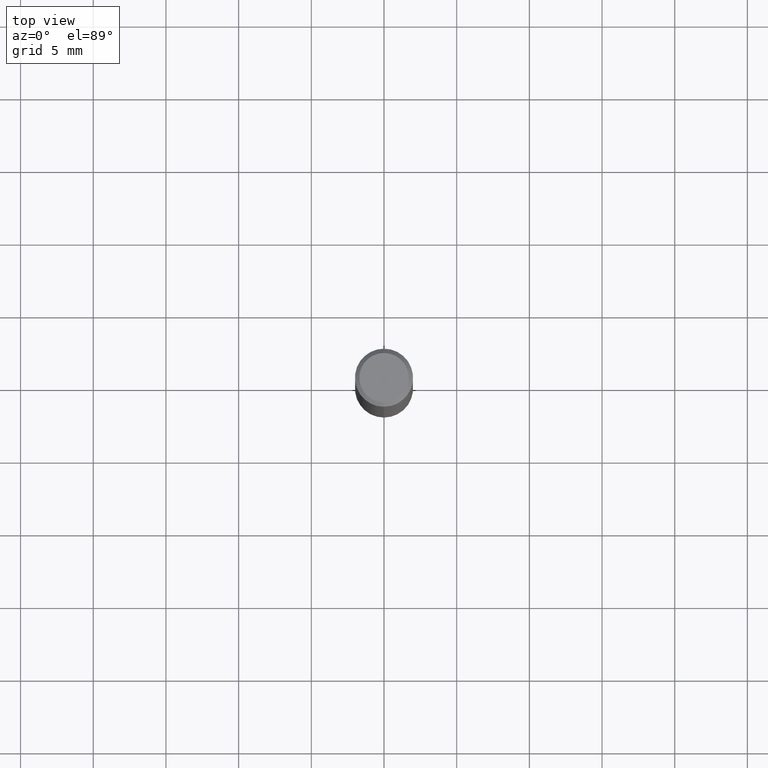
[diagram: clean part render]
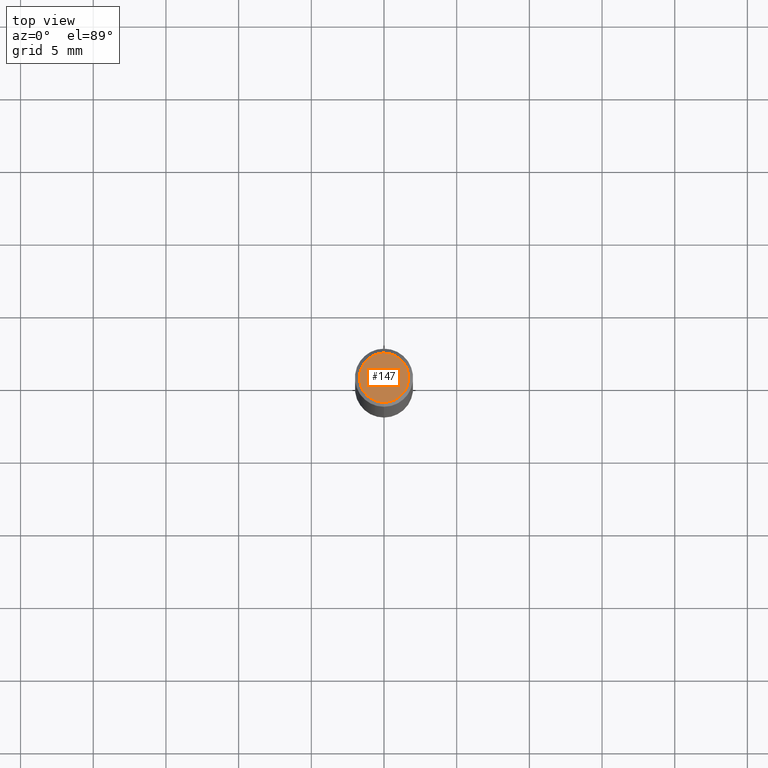
[diagram: same view with one face highlighted and labeled with its STEP entity id]
A machine part, top view. The second image highlights one B-rep face of the part: STEP entity #147.
In plain terms, the highlighted planar face has unit normal (-0, 0, 1).
Its self-contained STEP definition (entity closure, byte-faithful):
#147=ADVANCED_FACE('',(#384),#385,.T.);
#237=VERTEX_POINT('',#486);
#305=EDGE_CURVE('',#343,#237,#565,.T.);
#341=EDGE_CURVE('',#237,#343,#605,.T.);
#343=VERTEX_POINT('',#607);
#384=FACE_OUTER_BOUND('',#641,.T.);
#385=PLANE('',#642);
#486=CARTESIAN_POINT('',(2.08183080149804E-016,-1.7,0.00999999999999801));
#565=CIRCLE('',#873,1.7);
#605=CIRCLE('',#924,1.7);
#607=CARTESIAN_POINT('',(0.0,1.7,0.00999999999999801));
#641=EDGE_LOOP('',(#960,#961));
#642=AXIS2_PLACEMENT_3D('',#962,#963,#964);
#873=AXIS2_PLACEMENT_3D('',#1198,#1199,#1200);
#924=AXIS2_PLACEMENT_3D('',#1247,#1248,#1249);
#960=ORIENTED_EDGE('',*,*,#305,.F.);
#961=ORIENTED_EDGE('',*,*,#341,.F.);
#962=CARTESIAN_POINT('',(0.0,0.85,0.00999999999999801));
#963=DIRECTION('',(-0.0,0.0,1.0));
#964=DIRECTION('',(0.0,-1.0,0.0));
#1198=CARTESIAN_POINT('',(0.0,0.0,0.00999999999999801));
#1199=DIRECTION('',(0.0,0.0,-1.0));
#1200=DIRECTION('',(0.0,1.0,0.0));
#1247=CARTESIAN_POINT('',(0.0,0.0,0.00999999999999801));
#1248=DIRECTION('',(0.0,0.0,-1.0));
#1249=DIRECTION('',(0.0,1.0,0.0));